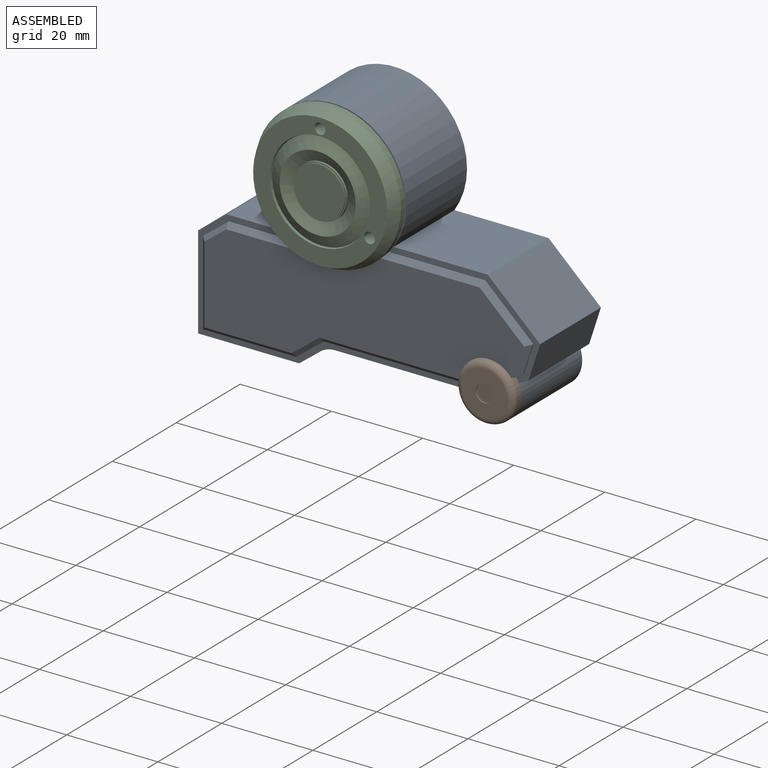
[diagram: assembled view]
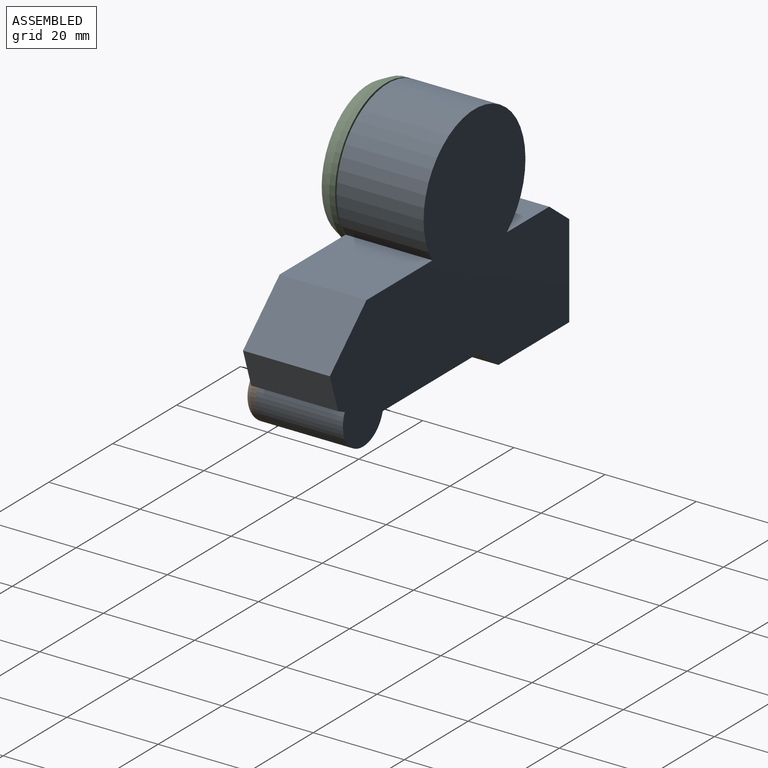
[diagram: assembled view, second angle]
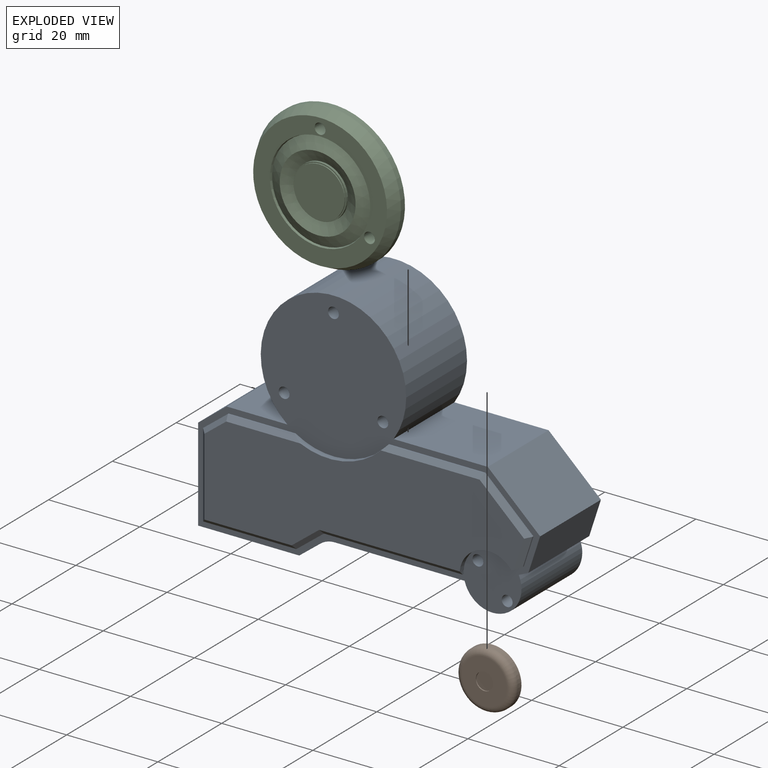
[diagram: exploded view]
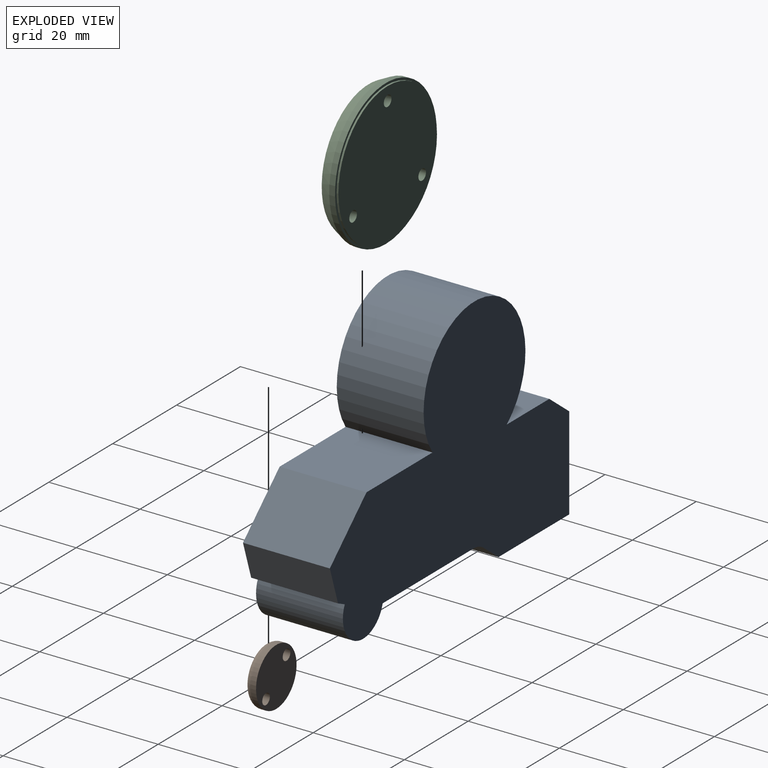
[diagram: exploded view, second angle]
ASSEMBLY  parts=3 mates=2
PART A: 47 faces, bbox 75x20.3x53.6 mm
  f0: plane 19.05x6.27mm, normal (-0.61,0,0.79), area 151.3mm2, adj f1,f11,f12,f13
  f1: plane 20.42x19.05mm, normal (-1,0,0), area 388.9mm2, adj f0,f2,f12,f13
  f2: plane 22.19x19.05mm, normal (0,0,-1), area 422.7mm2, adj f1,f3,f12,f13
  f3: plane 19.05x4.67mm, normal (0.61,0,-0.79), area 112.5mm2, adj f2,f12,f13,f46
  f4: plane 28.48x19.05mm, normal (0,0,-1), area 542.6mm2, adj f5,f12,f13,f46
  f5: cylinder r=6.35mm len=19.05mm, axis (0,1,0), area 400.8mm2, adj f4,f6,f12,f13
  f6: plane 19.05x2.11mm, normal (0.42,0,-0.91), area 44.4mm2, adj f5,f7,f12,f13
  f7: plane 19.05x7.9mm, normal (0.95,0,-0.31), area 158.3mm2, adj f6,f8,f12,f13
  f8: plane 19.05x11.48mm, normal (0.68,0,0.73), area 299.1mm2, adj f7,f9,f12,f13
  f9: plane 20.66x19.05mm, normal (0,0,1), area 393.6mm2, adj f8,f10,f12,f13
  f10: cylinder r=15.95mm len=31.91mm, axis (0,1,0), area 1405.3mm2, adj f9,f11,f12,f13
  f11: plane 19.05x13.3mm, normal (0,0,1), area 253.4mm2, adj f0,f10,f12,f13
  f12: plane 75.02x53.57mm, normal (0,-1,0), area 1089.5mm2, adj f0,f1,f2,f3,f4,f5,f6,f7
  f13: plane 75.02x53.57mm, normal (0,1,0), area 2458.9mm2, adj f0,f1,f2,f3,f4,f5,f6,f7
  f14: plane 6.49x2.11mm, normal (0.95,0,-0.31), area 1.7mm2, adj f12,f15,f25,f35
  f15: plane 10.53x9.82mm, normal (0.68,0,0.73), area 3.7mm2, adj f12,f14,f16,f34
  f16: plane 21.12x0.25mm, normal (0,0,1), area 5.4mm2, adj f12,f15,f17,f33
  f17: cylinder r=15.95mm len=20.55mm, axis (0,1,0), area 27mm2, adj f12,f16,f18,f26,f32,f33
  f18: plane 14.65x0.25mm, normal (0,0,1), area 3.7mm2, adj f12,f17,f19,f32
  f19: plane 5.44x4.22mm, normal (-0.61,0,0.79), area 1.7mm2, adj f12,f18,f20,f31
  f20: plane 18.52x0.25mm, normal (-1,0,0), area 4.7mm2, adj f12,f19,f21,f30
  f21: plane 20.49x0.25mm, normal (0,0,-1), area 5.2mm2, adj f12,f20,f22,f29
  f22: plane 6.04x4.69mm, normal (0.61,0,-0.79), area 1.9mm2, adj f12,f21,f23,f28
  f23: plane 30.45x0.25mm, normal (0,0,-1), area 7.7mm2, adj f12,f22,f24,f27
  f24: cylinder r=6.35mm len=11.4mm, axis (0,1,0), area 20.1mm2, adj f12,f23,f25,f26,f27
  f25: plane 1.82x1.27mm, normal (0.42,0,-0.91), area 1.8mm2, adj f12,f14,f24,f26,f35
  f26: plane 70.11x24.06mm, normal (0,-1,0), area 1204.9mm2, adj f17,f24,f25,f27,f28,f29,f30,f31
  f27: plane 30.82x1.02mm, normal (0,-0.71,-0.71), area 44mm2, adj f23,f24,f26,f28
  f28: plane 6.39x5.7mm, normal (0.43,-0.71,-0.56), area 11mm2, adj f22,f26,f27,f29
  f29: plane 20.49x1.02mm, normal (0,-0.71,-0.71), area 28.5mm2, adj f21,f26,f28,f30
  f30: plane 18.52x1.02mm, normal (-0.71,-0.71,0), area 25.5mm2, adj f20,f26,f29,f31
  f31: plane 5.79x4.72mm, normal (-0.43,-0.71,0.56), area 9.3mm2, adj f19,f26,f30,f32
  f32: plane 16.6x1.02mm, normal (0,-0.71,0.71), area 22.1mm2, adj f17,f18,f26,f31
  f33: plane 22.06x1.02mm, normal (0,-0.71,0.71), area 30.7mm2, adj f16,f17,f26,f34
  f34: plane 10.93x10.12mm, normal (0.48,-0.71,0.52), area 19.9mm2, adj f15,f26,f33,f35
  f35: plane 7.08x3.37mm, normal (0.67,-0.71,-0.22), area 10mm2, adj f14,f25,f26,f34
  f36: cylinder r=1.19mm len=6.35mm, axis (0,-1,0), area 47.6mm2, adj f12,f37
  f37: plane 2.39x2.39mm, normal (0,-1,0), area 4.5mm2, adj f36
  f38: cylinder r=1.19mm len=6.35mm, axis (0,-1,0), area 47.6mm2, adj f12,f39
  f39: plane 2.39x2.39mm, normal (0,-1,0), area 4.5mm2, adj f38
  f40: cylinder r=1.19mm len=6.35mm, axis (0,-1,0), area 47.6mm2, adj f12,f41
  f41: plane 2.39x2.39mm, normal (0,-1,0), area 4.5mm2, adj f40
  f42: cylinder r=1.19mm len=6.35mm, axis (0,-1,0), area 47.6mm2, adj f12,f43
  f43: plane 2.39x2.39mm, normal (0,-1,0), area 4.5mm2, adj f42
  f44: cylinder r=1.19mm len=6.35mm, axis (0,-1,0), area 47.6mm2, adj f12,f45
  f45: plane 2.39x2.39mm, normal (0,-1,0), area 4.5mm2, adj f44
  f46: cylinder r=5.08mm len=19.05mm, axis (0,-1,0), area 63.9mm2, adj f3,f4,f12,f13
PART B: 10 faces, bbox 13.7x2.5x13.7 mm
  f0: cylinder r=1.19mm len=2.39mm, axis (0,1,0), area 17.1mm2, adj f4,f6
  f1: cylinder r=1.19mm len=2.39mm, axis (0,1,0), area 17.1mm2, adj f4,f5
  f2: cylinder r=6.35mm len=12.7mm, axis (0,1,0), area 45.6mm2, adj f4,f7
  f3: plane 9.91x9.91mm, normal (0,-1,0), area 65.7mm2, adj f7,f8
  f4: plane 12.7x12.7mm, normal (0,1,0), area 117.7mm2, adj f0,f1,f2
  f5: plane 2.39x2.39mm, normal (0,1,0), area 4.5mm2, adj f1
  f6: plane 2.39x2.39mm, normal (0,1,0), area 4.5mm2, adj f0
  f7: torus R=4.95mm, axis (0,-1,0), area 80.6mm2, adj f2,f3
  f8: cylinder r=1.91mm len=3.81mm, axis (0,-1,0), area 3mm2, adj f3,f9
  f9: plane 3.81x3.81mm, normal (0,-1,0), area 11.4mm2, adj f8
PART C: 17 faces, bbox 31.9x5x31.9 mm
  f0: cylinder r=1.19mm len=2.39mm, axis (0,1,0), area 16.2mm2, adj f4,f8
  f1: cylinder r=1.19mm len=4.19mm, axis (0,1,0), area 31.4mm2, adj f4,f6
  f2: cylinder r=1.19mm len=4.19mm, axis (0,1,0), area 31.4mm2, adj f4,f6
  f3: cylinder r=15.45mm len=30.89mm, axis (0,1,0), area 37mm2, adj f4,f7
  f4: plane 30.89x30.89mm, normal (0,1,0), area 736mm2, adj f0,f1,f2,f3
  f5: cylinder r=15.95mm len=31.91mm, axis (0,1,0), area 127.3mm2, adj f7,f9
  f6: plane 29.37x29.37mm, normal (0,-1,0), area 288.2mm2, adj f1,f2,f9,f10
  f7: plane 31.91x31.91mm, normal (0,1,0), area 50.1mm2, adj f3,f5
  f8: plane 2.39x2.39mm, normal (0,1,0), area 4.5mm2, adj f0
  f9: cone r=14.68mm half-angle=26.6deg, axis (0,1,0), area 273.3mm2, adj f5,f6
  f10: cone r=10.87mm half-angle=14deg, axis (0,-1,0), area 36mm2, adj f6,f11
  f11: cone r=8.33mm half-angle=63.4deg, axis (0,1,0), area 171.4mm2, adj f10,f12
  f12: cone r=5.79mm half-angle=63.4deg, axis (0,-1,0), area 126mm2, adj f11,f13
  f13: cylinder r=5.79mm len=11.59mm, axis (0,1,0), area 18.5mm2, adj f12,f14
  f14: plane 11.59x11.59mm, normal (0,-1,0), area 9mm2, adj f13,f15
  f15: cylinder r=5.54mm len=11.08mm, axis (0,1,0), area 8.8mm2, adj f14,f16
  f16: plane 11.08x11.08mm, normal (0,-1,0), area 96.4mm2, adj f15
PLACE A t=(-6.56,9.59,6.63)mm fixed
PLACE B t=(-6.56,9.59,6.63)mm
PLACE C t=(-6.56,9.59,6.63)mm
MATE fastened B.f2 <-> A.f5  axis (0,1,0) through (58.03,-9.46,12.98)mm
MATE fastened C.f3 <-> A.f10  axis (0,1,0) through (23.14,-9.46,44.25)mm
